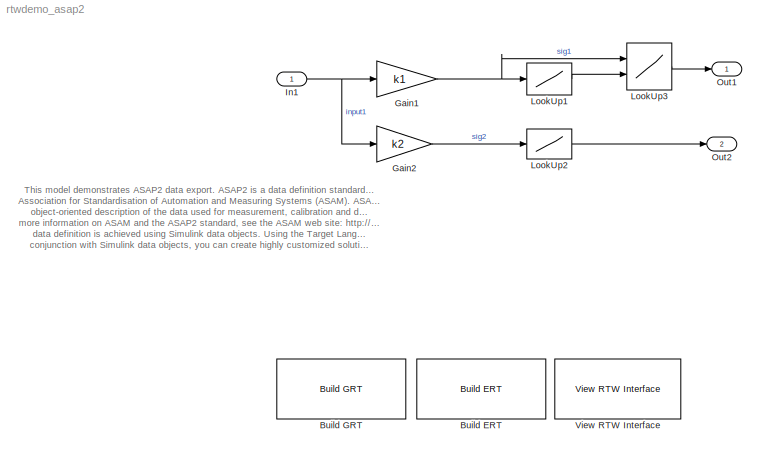
MODEL rtwdemo_asap2
KIND model
CONFIG PostLoadFcn = rtwdemo_asap2_data
BLOCK [Reference] Build ERT  REF=rtwdemowidgets/Build ERT
  Ports = []
  ShowPortLabels = on
  SourceBlock = rtwdemowidgets/Build ERT
  attrib_overrides = {'GenerateASAP2'}
BLOCK [Reference] Build GRT  REF=rtwdemowidgets/Build GRT
  Ports = []
  ShowPortLabels = on
  SourceBlock = rtwdemowidgets/Build GRT
  attrib_overrides = {'GenerateASAP2'}
BLOCK [Gain] Gain1
  Gain = k1
BLOCK [Gain] Gain2
  Gain = k2
BLOCK [Inport] In1
  IconDisplay = Port number
  LatchInput = off
  Port = 1
BLOCK [Lookup] LookUp1
  DialogController = Simulink.DDGSource
  InputValues = xbreak1
  OutputValues = ydata
BLOCK [Lookup] LookUp2
  DialogController = Simulink.DDGSource
  InputValues = xbreak1
  OutputValues = ydata
BLOCK [Lookup2D] LookUp3
  ColumnIndex = ybreak
  DialogController = Simulink.DDGSource
  OutScaling = 2^-10
  OutputValues = zdata
  RowIndex = xbreak2
  SaturateOnIntegerOverflow = off
BLOCK [Outport] Out1
  BusOutputAsStruct = off
  IconDisplay = Port number
BLOCK [Outport] Out2
  BusOutputAsStruct = off
  IconDisplay = Port number
  Port = 2
BLOCK [Reference] View RTW Interface  REF=rtwdemowidgets/View RTW Interface
  Ports = []
  ShowPortLabels = on
  SourceBlock = rtwdemowidgets/View RTW Interface
ANNOTATION (root): This model demonstrates ASAP2 data export. ASAP2 is a data definition standard proposed by the\nAssociation for Standardisation of Automation and Measuring Systems (ASAM). ASAP2 is a non\nobject-oriented description of the data used for measurement, calibration and diagnostics systems. For\nmore information on ASAM and the ASAP2 standard, see the ASAM web site: http://www.asam.de. ASAP2\ndata defi...<+378ch>
NET Gain1:1 -> LookUp1:1, LookUp3:1
LINE Gain2:1 -> LookUp2:1
NET In1:1 -> Gain1:1, Gain2:1
LINE LookUp1:1 -> LookUp3:2
LINE LookUp2:1 -> Out2:1
LINE LookUp3:1 -> Out1:1
note: NET lines group one-source signal fan-out (src -> all destinations, sorted); 1:1 wires keep LINE
